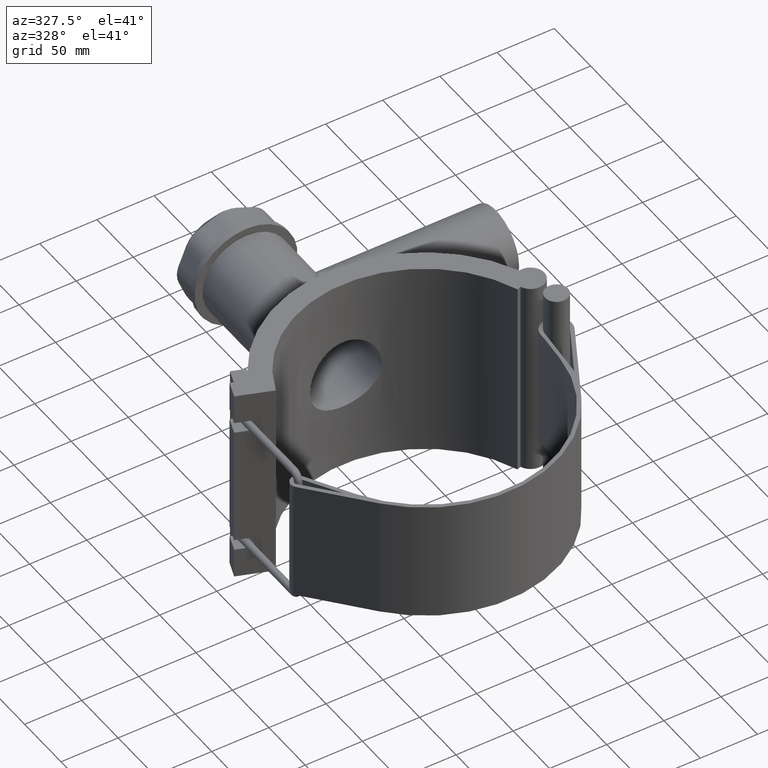
[diagram: clean part render]
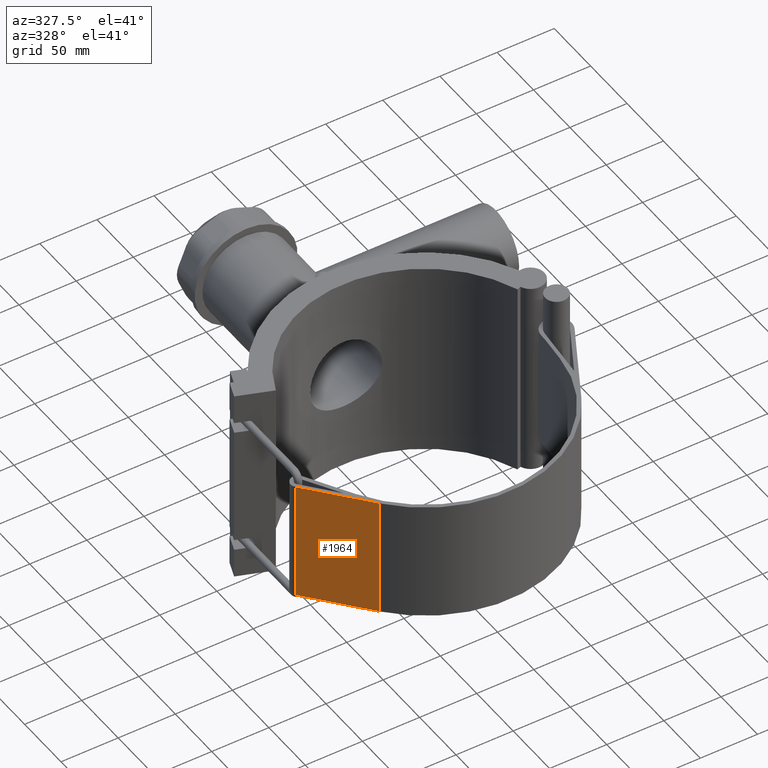
[diagram: same view with one face highlighted and labeled with its STEP entity id]
A machine part, auxiliary view. The second image highlights one B-rep face of the part: STEP entity #1964.
In plain terms, the highlighted planar face has unit normal (-0.7563, -0.6542, 0).
Its self-contained STEP definition (entity closure, byte-faithful):
#103=LINE('',#3353,#264);
#110=LINE('',#3381,#271);
#191=LINE('',#3612,#352);
#192=LINE('',#3614,#353);
#264=VECTOR('',#2448,64.8408064183196);
#271=VECTOR('',#2471,64.8408064183196);
#352=VECTOR('',#2690,105.6);
#353=VECTOR('',#2693,105.6);
#543=FACE_OUTER_BOUND('',#685,.T.);
#685=EDGE_LOOP('',(#1703,#1704,#1705,#1706));
#892=VERTEX_POINT('',#3350);
#893=VERTEX_POINT('',#3352);
#905=VERTEX_POINT('',#3378);
#906=VERTEX_POINT('',#3380);
#1106=EDGE_CURVE('',#892,#893,#103,.T.);
#1120=EDGE_CURVE('',#905,#906,#110,.T.);
#1233=EDGE_CURVE('',#892,#906,#191,.T.);
#1234=EDGE_CURVE('',#893,#905,#192,.T.);
#1703=ORIENTED_EDGE('',*,*,#1233,.T.);
#1704=ORIENTED_EDGE('',*,*,#1120,.F.);
#1705=ORIENTED_EDGE('',*,*,#1234,.F.);
#1706=ORIENTED_EDGE('',*,*,#1106,.F.);
#1860=PLANE('',#2160);
#1964=ADVANCED_FACE('',(#543),#1860,.T.);
#2160=AXIS2_PLACEMENT_3D('',#3613,#2691,#2692);
#2448=DIRECTION('',(-0.654222560450905,0.756302083427688,0.));
#2471=DIRECTION('',(0.654222560450905,-0.756302083427688,0.));
#2690=DIRECTION('',(0.,0.,1.));
#2691=DIRECTION('center_axis',(-0.756302083427688,-0.654222560450905,0.));
#2692=DIRECTION('ref_axis',(0.654222560450906,-0.756302083427688,0.));
#2693=DIRECTION('',(0.,0.,1.));
#3350=CARTESIAN_POINT('',(-87.6365039171833,-75.8080391922487,-52.8));
#3352=CARTESIAN_POINT('',(-130.056822313878,-26.7688022069422,-52.8));
#3353=CARTESIAN_POINT('',(-130.056822313878,-26.7688022069422,-52.8));
#3378=CARTESIAN_POINT('',(-130.056822313878,-26.7688022069422,52.8));
#3380=CARTESIAN_POINT('',(-87.6365039171833,-75.8080391922487,52.8));
#3381=CARTESIAN_POINT('',(-130.056822313878,-26.7688022069422,52.8));
#3612=CARTESIAN_POINT('',(-87.6365039171833,-75.8080391922487,0.));
#3613=CARTESIAN_POINT('Origin',(-130.056822313878,-26.7688022069422,0.));
#3614=CARTESIAN_POINT('',(-130.056822313878,-26.7688022069422,0.));